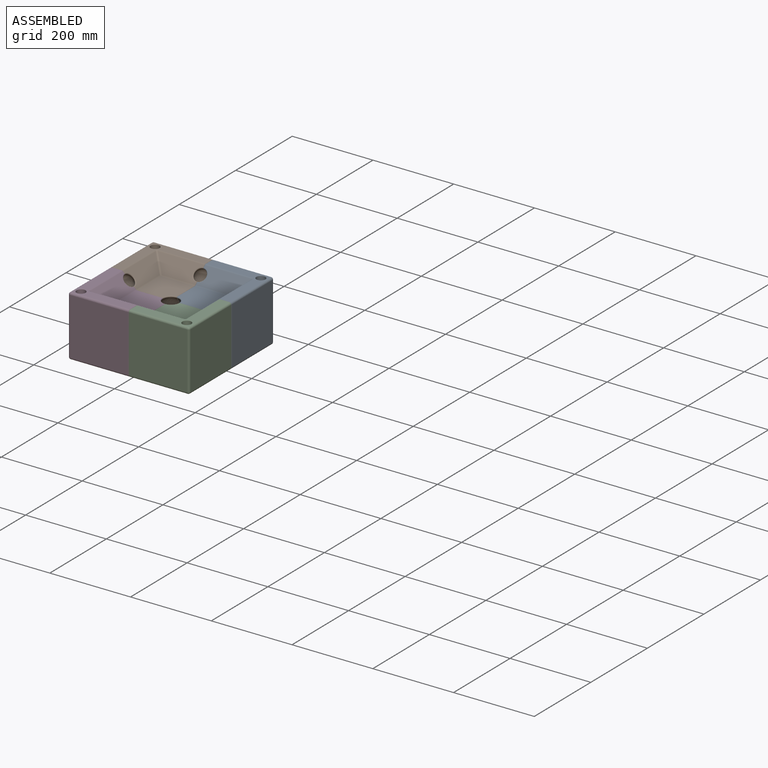
[diagram: assembled view]
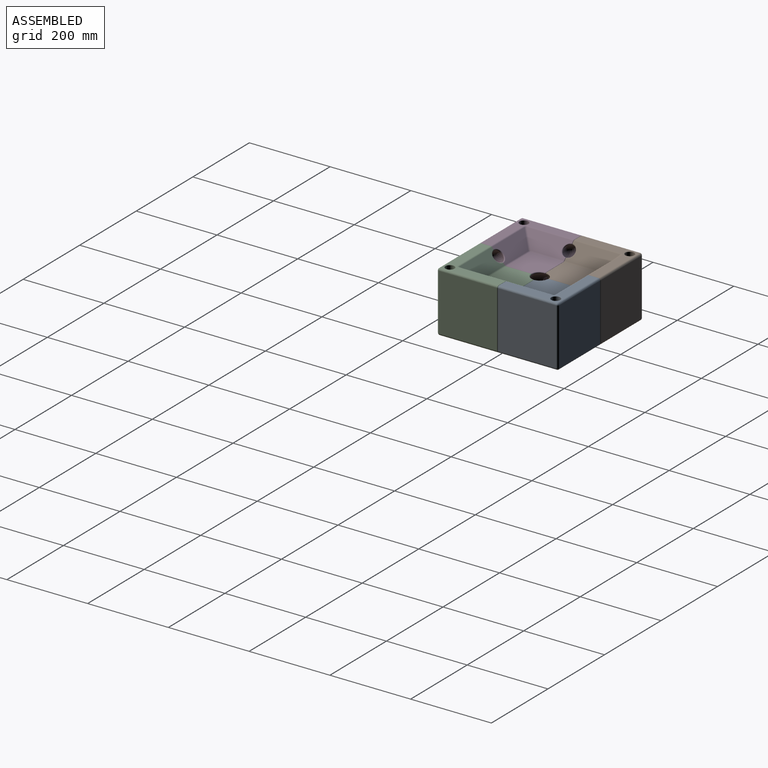
[diagram: assembled view, second angle]
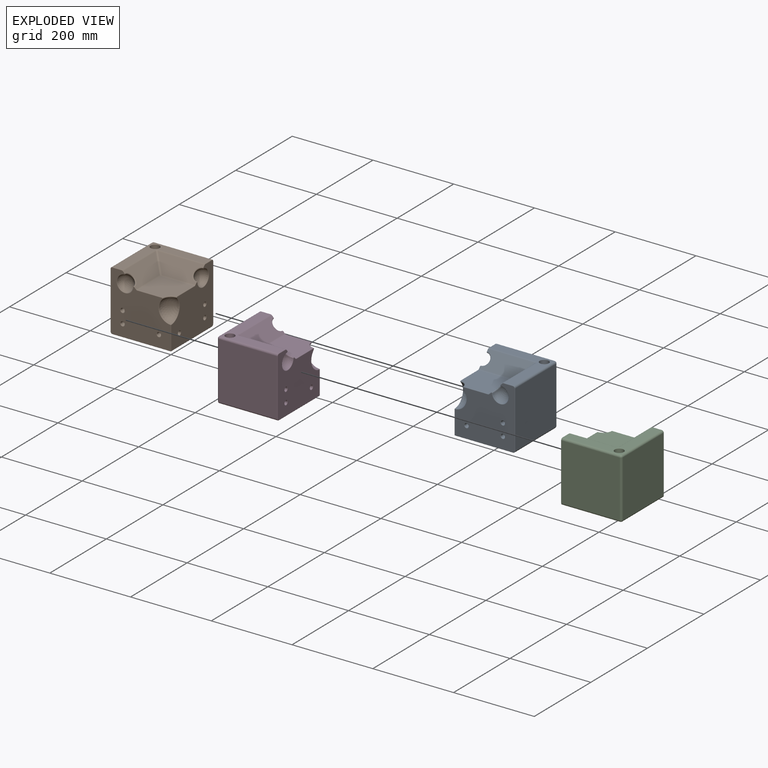
[diagram: exploded view]
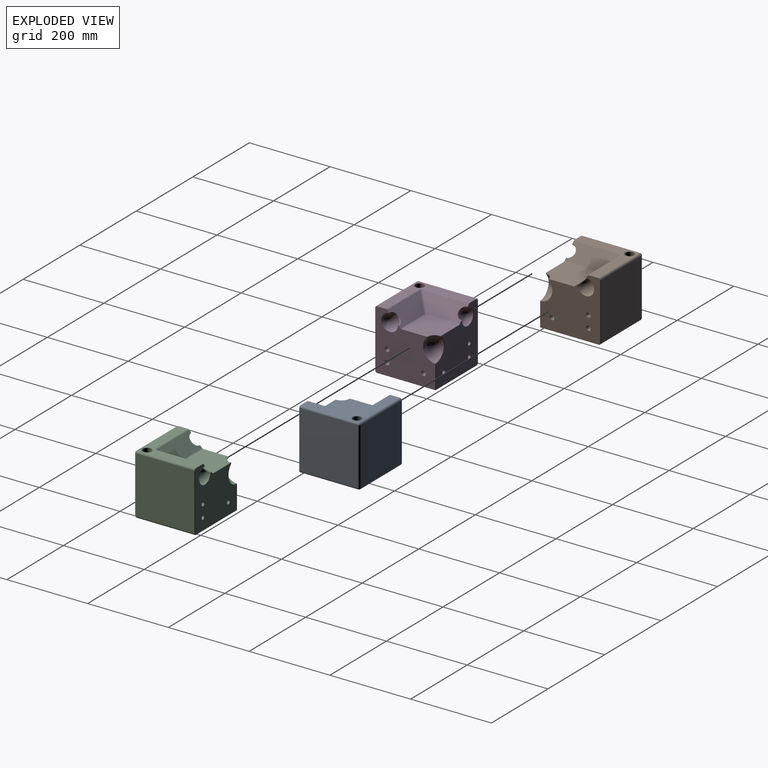
[diagram: exploded view, second angle]
ASSEMBLY  parts=4 mates=3
PART A: 160 faces, bbox 153.2x150.4x150.8 mm
  f0: plane 144x144mm, normal (0,0,-1), area 5743.7mm2, adj f15,f27,f60,f64,f100,f104,f105,f110
  f1: cylinder r=5mm len=133mm, axis (0,0,1), area 4178.3mm2, adj f138,f141
  f2: plane 131x87.17mm, normal (0,-1,0), area 10980mm2, adj f109,f120,f121,f127,f128
  f3: plane 80.78x5.96mm, normal (0,0,-1), area 453.5mm2, adj f97,f106,f118,f133
  f4: plane 144x140mm, normal (0,1,0), area 20160mm2, adj f14,f15,f26,f54
  f5: plane 144x144mm, normal (0,0,1), area 5634.7mm2, adj f13,f14,f23,f24,f25,f46,f55,f139
  f6: torus R=16.97mm, axis (0,0.71,-0.71), area 211.8mm2, adj f7,f9,f33,f34
  f7: sphere r=20mm, area 1970.2mm2, adj f6,f32
  f8: plane 81.93x81.93mm, normal (0,0,1), area 6367.1mm2, adj f11,f12,f22,f44,f45
  f9: plane 114x32.07mm, normal (0,-0.71,0.71), area 4024.7mm2, adj f6,f12,f13,f21,f37,f38
  f10: sphere r=30mm, area 2293.1mm2, adj f11,f52,f53
  f11: torus R=22.25mm, axis (0,0,1), area 145.9mm2, adj f8,f10,f48,f49
  f12: cylinder r=5mm len=81.93mm, axis (1,0,0), area 321.7mm2, adj f8,f9,f20,f41
  f13: cylinder r=5mm len=114mm, axis (1,0,0), area 447.7mm2, adj f5,f9,f23,f42
  f14: cylinder r=5mm len=144mm, axis (1,0,0), area 1131mm2, adj f4,f5,f28,f50
  f15: cylinder r=5mm len=144mm, axis (-1,0,0), area 1131mm2, adj f0,f4,f29,f57
  f16: plane 144x140mm, normal (-1,0,0), area 20160mm2, adj f25,f26,f27,f61
  f17: plane 114x32.07mm, normal (0.71,0,0.71), area 4024.7mm2, adj f19,f21,f22,f24,f36,f47
  f18: sphere r=20mm, area 1970.2mm2, adj f19,f39
  f19: torus R=16.97mm, axis (-0.71,0,-0.71), area 211.8mm2, adj f17,f18,f35,f43
  f20: sphere r=5mm, area 8.5mm2, adj f12,f21,f22
  f21: cylinder r=5mm len=36.7mm, axis (-0.58,0.58,0.58), area 297.4mm2, adj f9,f17,f20,f23
  f22: cylinder r=5mm len=81.93mm, axis (0,1,0), area 321.7mm2, adj f8,f17,f20,f40
  f23: bspline ~7.07x7.07mm, area 29.9mm2, adj f5,f13,f21,f24
  f24: cylinder r=5mm len=114mm, axis (0,-1,0), area 447.7mm2, adj f5,f17,f23,f51
  f25: cylinder r=5mm len=144mm, axis (0,1,0), area 1131mm2, adj f5,f16,f28,f58
  f26: cylinder r=5mm len=140mm, axis (0,0,-1), area 1099.6mm2, adj f4,f16,f28,f29
  f27: cylinder r=5mm len=144mm, axis (0,-1,0), area 1131mm2, adj f0,f16,f29,f63
  f28: sphere r=5mm, area 39.3mm2, adj f14,f25,f26
  f29: sphere r=5mm, area 39.3mm2, adj f15,f26,f27
  f30: plane 148x148mm, normal (0,-1,0), area 15366.6mm2, adj f35,f36,f39,f40,f43,f44,f47,f48
  f31: plane 148x148mm, normal (1,0,0), area 15366.6mm2, adj f32,f33,f34,f37,f38,f41,f42,f45
  f32: torus R=20.98mm, axis (1,0,0), area 140.2mm2, adj f7,f31,f33,f34
  f33: bspline ~3.71x2.26mm, area 5.6mm2, adj f6,f31,f32,f37
  f34: bspline ~3.71x2.26mm, area 5.6mm2, adj f6,f31,f32,f38
  f35: bspline ~3.71x2.26mm, area 5.6mm2, adj f19,f30,f36,f39
  f36: cylinder r=1mm len=4.76mm, axis (-0.71,0,0.71), area 9mm2, adj f17,f30,f35,f40
  f37: cylinder r=1mm len=4.76mm, axis (0,0.71,0.71), area 9mm2, adj f9,f31,f33,f41
  f38: cylinder r=1mm len=4.76mm, axis (0,0.71,0.71), area 9mm2, adj f9,f31,f34,f42
  f39: torus R=20.98mm, axis (0,1,0), area 140.2mm2, adj f18,f30,f35,f43
  f40: torus R=6mm, axis (0,1,0), area 6.6mm2, adj f22,f30,f36,f44
  f41: torus R=6mm, axis (1,0,0), area 6.6mm2, adj f12,f31,f37,f45
  f42: torus R=4mm, axis (1,0,0), area 5.7mm2, adj f13,f31,f38,f46
  f43: bspline ~3.71x2.26mm, area 5.6mm2, adj f19,f30,f39,f47
  f44: cylinder r=1mm len=60.7mm, axis (1,0,0), area 95.4mm2, adj f8,f30,f40,f48
  f45: cylinder r=1mm len=60.7mm, axis (0,1,0), area 95.4mm2, adj f8,f31,f41,f49
  f46: cylinder r=1mm len=22.93mm, axis (0,1,0), area 36mm2, adj f5,f31,f42,f50
  f47: cylinder r=1mm len=4.76mm, axis (-0.71,0,0.71), area 9mm2, adj f17,f30,f43,f51
  f48: bspline ~3.72x2.45mm, area 5.9mm2, adj f11,f30,f44,f52
  f49: bspline ~3.72x2.45mm, area 5.9mm2, adj f11,f31,f45,f53
  f50: torus R=4mm, axis (1,0,0), area 11.4mm2, adj f14,f31,f46,f54
  f51: torus R=4mm, axis (0,1,0), area 5.7mm2, adj f24,f30,f47,f55
  f52: torus R=30.98mm, axis (0,1,0), area 109.3mm2, adj f10,f30,f48,f56
  f53: torus R=30.98mm, axis (1,0,0), area 109.3mm2, adj f10,f31,f49,f56
  f54: cylinder r=1mm len=140mm, axis (0,0,-1), area 219.9mm2, adj f4,f31,f50,f57
  f55: cylinder r=1mm len=22.93mm, axis (1,0,0), area 36mm2, adj f5,f30,f51,f58
  f56: sphere r=1mm, area 1.5mm2, adj f52,f53,f59
  f57: torus R=4mm, axis (1,0,0), area 11.4mm2, adj f15,f31,f54,f60
  f58: torus R=4mm, axis (0,1,0), area 11.4mm2, adj f25,f30,f55,f61
  f59: cylinder r=1mm len=58.03mm, axis (0,0,-1), area 91.2mm2, adj f30,f31,f56,f62
  f60: cylinder r=1mm len=144mm, axis (0,-1,0), area 226.2mm2, adj f0,f31,f57,f62
  f61: cylinder r=1mm len=140mm, axis (0,0,1), area 219.9mm2, adj f16,f30,f58,f63
  f62: sphere r=1mm, area 1.6mm2, adj f59,f60,f64
  f63: torus R=4mm, axis (0,1,0), area 11.4mm2, adj f27,f30,f61,f64
  f64: cylinder r=1mm len=144mm, axis (-1,0,0), area 226.2mm2, adj f0,f30,f62,f63
  f65: plane 80.78x5.96mm, normal (0,0,-1), area 453.5mm2, adj f119,f127,f131,f136
  f66: sphere r=35mm, area 1311.4mm2, adj f107,f108,f114,f119,f120
  f67: plane 65.93x65.93mm, normal (0,0,-1), area 3911.5mm2, adj f70,f76,f82,f84,f93
  f68: plane 81.59x28.56mm, normal (0,0.71,-0.71), area 2513.3mm2, adj f70,f75,f114,f129,f136
  f69: sphere r=45mm, area 1442.5mm2, adj f84,f89,f90
  f70: cylinder r=20mm len=65.93mm, axis (1,0,0), area 969.3mm2, adj f67,f68,f74,f98,f107
  f71: plane 131x87.17mm, normal (1,0,0), area 10980mm2, adj f96,f101,f106,f111,f112
  f72: plane 81.59x28.56mm, normal (-0.71,0,-0.71), area 2513.3mm2, adj f75,f76,f92,f123,f133
  f73: sphere r=35mm, area 1311.4mm2, adj f87,f91,f92,f96,f97
  f74: sphere r=20mm, area 135.9mm2, adj f70,f75,f76
  f75: cylinder r=20mm len=42.02mm, axis (-0.58,0.58,0.58), area 982.4mm2, adj f68,f72,f74,f126
  f76: cylinder r=20mm len=65.93mm, axis (0,1,0), area 969.3mm2, adj f67,f72,f74,f83,f87
  f77: plane 116x97.02mm, normal (0,1,0), area 9501.6mm2, adj f82,f83,f90,f91,f99,f100,f101,f151
  f78: plane 116x97.02mm, normal (-1,0,0), area 9501.6mm2, adj f89,f93,f98,f99,f108,f109,f110,f157
  f79: plane 131x28.83mm, normal (0.71,-0.71,0), area 5271.6mm2, adj f112,f118,f122,f123,f126,f128,f129,f131
  f80: plane 20x20mm, normal (0,0,1), area 201.1mm2, adj f138,f140
  f81: cylinder r=11mm len=22mm, axis (0,0,1), area 898.5mm2, adj f139,f140
  f82: cylinder r=2mm len=39.85mm, axis (-1,0,0), area 125.2mm2, adj f67,f77,f83,f85
  f83: torus R=22mm, axis (0,1,0), area 19.9mm2, adj f76,f77,f82,f86
  f84: torus R=46.31mm, axis (0,0,1), area 128.3mm2, adj f67,f69,f85,f88
  f85: sphere r=2mm, area 5.2mm2, adj f82,f84,f90
  f86: sphere r=2mm, area 3.3mm2, adj f83,f87,f91
  f87: bspline ~15.39x12.05mm, area 41.8mm2, adj f73,f76,f86,f92
  f88: sphere r=2mm, area 5.2mm2, adj f84,f89,f93
  f89: torus R=43.82mm, axis (1,0,0), area 139.2mm2, adj f69,f78,f88,f94
  f90: torus R=43.82mm, axis (0,1,0), area 139.2mm2, adj f69,f77,f85,f94
  f91: torus R=32.86mm, axis (0,1,0), area 101.3mm2, adj f73,f77,f86,f95
  f92: torus R=36.99mm, axis (-0.71,0,-0.71), area 127.9mm2, adj f72,f73,f87,f132
  f93: cylinder r=2mm len=39.85mm, axis (0,-1,0), area 125.2mm2, adj f67,f78,f88,f98
  f94: sphere r=2mm, area 3.7mm2, adj f89,f90,f99
  f95: sphere r=2mm, area 5.2mm2, adj f91,f96,f101
  f96: torus R=31.64mm, axis (1,0,0), area 177.2mm2, adj f71,f73,f95,f102
  f97: torus R=35.06mm, axis (0,0,1), area 24.5mm2, adj f3,f73,f102,f132
  f98: torus R=22mm, axis (1,0,0), area 19.9mm2, adj f70,f78,f93,f103
  f99: cylinder r=2mm len=47.61mm, axis (0,0,1), area 149.6mm2, adj f77,f78,f94,f104
  f100: cylinder r=2mm len=116mm, axis (-1,0,0), area 364.4mm2, adj f0,f77,f104,f105
  f101: cylinder r=2mm len=92.51mm, axis (0,0,-1), area 290.6mm2, adj f71,f77,f95,f105
  f102: sphere r=2mm, area 11mm2, adj f96,f97,f106
  f103: sphere r=2mm, area 3.3mm2, adj f98,f107,f108
  f104: torus R=4mm, axis (0,0,1), area 13.5mm2, adj f0,f99,f100,f110
  f105: torus R=4mm, axis (0,0,1), area 13.5mm2, adj f0,f100,f101,f111
  f106: cylinder r=2mm len=74.82mm, axis (0,-1,0), area 235.1mm2, adj f3,f71,f102,f113
  f107: bspline ~15.39x12.05mm, area 41.8mm2, adj f66,f70,f103,f114
  f108: torus R=32.86mm, axis (1,0,0), area 101.3mm2, adj f66,f78,f103,f115
  f109: cylinder r=2mm len=92.51mm, axis (0,0,1), area 290.6mm2, adj f2,f78,f115,f116
  f110: cylinder r=2mm len=116mm, axis (0,1,0), area 364.4mm2, adj f0,f78,f104,f116
  f111: cylinder r=2mm len=87.17mm, axis (0,1,0), area 273.9mm2, adj f0,f71,f105,f117
  f112: cylinder r=2mm len=131mm, axis (0,0,-1), area 205.8mm2, adj f71,f79,f113,f117
  f113: sphere r=2mm, area 3.1mm2, adj f106,f112,f118
  f114: torus R=36.99mm, axis (0,-0.71,0.71), area 127.9mm2, adj f66,f68,f107,f135
  f115: sphere r=2mm, area 5.2mm2, adj f108,f109,f120
  f116: torus R=4mm, axis (0,0,1), area 13.5mm2, adj f0,f109,f110,f121
  f117: torus R=4mm, axis (0,0,1), area 6.7mm2, adj f0,f111,f112,f122
  f118: cylinder r=2mm len=7.37mm, axis (-0.71,-0.71,0), area 26.5mm2, adj f3,f79,f113,f134
  f119: torus R=35.06mm, axis (0,0,1), area 24.5mm2, adj f65,f66,f124,f135
  f120: torus R=31.64mm, axis (0,-1,0), area 177.2mm2, adj f2,f66,f115,f124
  f121: cylinder r=2mm len=87.17mm, axis (-1,0,0), area 273.9mm2, adj f0,f2,f116,f125
  f122: cylinder r=2mm len=30.24mm, axis (0.71,0.71,0), area 128.1mm2, adj f0,f79,f117,f125
  f123: cylinder r=2mm len=3.51mm, axis (-0.58,-0.58,0.58), area 4.9mm2, adj f72,f79,f126,f134
  f124: sphere r=2mm, area 11mm2, adj f119,f120,f127
  f125: torus R=4mm, axis (0,0,1), area 6.7mm2, adj f0,f121,f122,f128
  f126: bspline ~16.97x16.97mm, area 93.7mm2, adj f75,f79,f123,f129
  f127: cylinder r=2mm len=74.82mm, axis (1,0,0), area 235.1mm2, adj f2,f65,f124,f130
  f128: cylinder r=2mm len=131mm, axis (0,0,-1), area 205.8mm2, adj f2,f79,f125,f130
  f129: cylinder r=2mm len=3.51mm, axis (0.58,0.58,0.58), area 4.9mm2, adj f68,f79,f126,f137
  f130: sphere r=2mm, area 3.1mm2, adj f127,f128,f131
  f131: cylinder r=2mm len=7.37mm, axis (-0.71,-0.71,0), area 26.5mm2, adj f65,f79,f130,f137
  f132: sphere r=2mm, area 3.3mm2, adj f92,f97,f133
  f133: cylinder r=2mm len=77.66mm, axis (0,-1,0), area 122mm2, adj f3,f72,f132,f134
  f134: sphere r=2mm, area 3.1mm2, adj f118,f123,f133
  f135: sphere r=2mm, area 3.3mm2, adj f114,f119,f136
  f136: cylinder r=2mm len=77.66mm, axis (-1,0,0), area 122mm2, adj f65,f68,f135,f137
  f137: sphere r=2mm, area 3.1mm2, adj f129,f131,f136
  f138: torus R=6mm, axis (0,0,1), area 52.9mm2, adj f1,f80
  f139: torus R=12mm, axis (0,0,1), area 112.2mm2, adj f5,f81
  f140: torus R=10mm, axis (0,0,1), area 105mm2, adj f80,f81
  f141: torus R=6mm, axis (0,0,1), area 52.9mm2, adj f0,f1
  f142: cylinder r=5mm len=13mm, axis (-1,0,0), area 408.4mm2, adj f156,f159
  f143: cylinder r=5mm len=13mm, axis (-1,0,0), area 408.4mm2, adj f155,f158
  f144: cylinder r=5mm len=13mm, axis (-1,0,0), area 408.4mm2, adj f154,f157
  f145: cylinder r=5mm len=13mm, axis (0,1,0), area 408.4mm2, adj f150,f151
  f146: cylinder r=5mm len=13mm, axis (0,1,0), area 408.4mm2, adj f149,f152
  f147: cylinder r=5mm len=13mm, axis (0,1,0), area 408.4mm2, adj f148,f153
  f148: torus R=6mm, axis (0,1,0), area 52.9mm2, adj f30,f147
  f149: torus R=6mm, axis (0,1,0), area 52.9mm2, adj f30,f146
  f150: torus R=6mm, axis (0,1,0), area 52.9mm2, adj f30,f145
  f151: torus R=6mm, axis (0,1,0), area 52.9mm2, adj f77,f145
  f152: torus R=6mm, axis (0,1,0), area 52.9mm2, adj f77,f146
  f153: torus R=6mm, axis (0,1,0), area 52.9mm2, adj f77,f147
  f154: torus R=6mm, axis (1,0,0), area 52.9mm2, adj f31,f144
  f155: torus R=6mm, axis (1,0,0), area 52.9mm2, adj f31,f143
  f156: torus R=6mm, axis (1,0,0), area 52.9mm2, adj f31,f142
  f157: torus R=6mm, axis (1,0,0), area 52.9mm2, adj f78,f144
  f158: torus R=6mm, axis (1,0,0), area 52.9mm2, adj f78,f143
  f159: torus R=6mm, axis (1,0,0), area 52.9mm2, adj f78,f142
PART B: same geometry as A
PART C: same geometry as A
PART D: same geometry as A
PLACE A rot(axis=(0,0,-1),90deg) t=(0,0,0)mm
PLACE B at identity fixed
PLACE C rot(axis=(0,0,-1),180deg) t=(0,0,0)mm
PLACE D rot(axis=(0,0,1),90deg) t=(0,0,0)mm
MATE fastened B.f145 <-> D.f144  axis (0,-1,0) through (-120,0,60)mm
MATE fastened C.f144 <-> D.f145  axis (-1,0,0) through (0,-120,60)mm
MATE fastened B.f144 <-> A.f145  axis (1,0,0) through (0,120,60)mm
